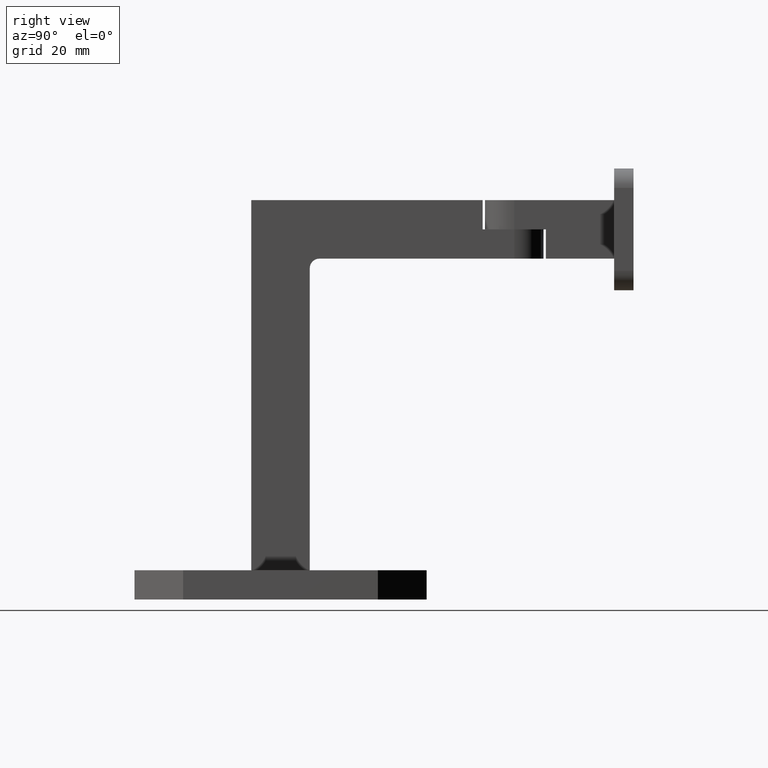
[diagram: clean part render]
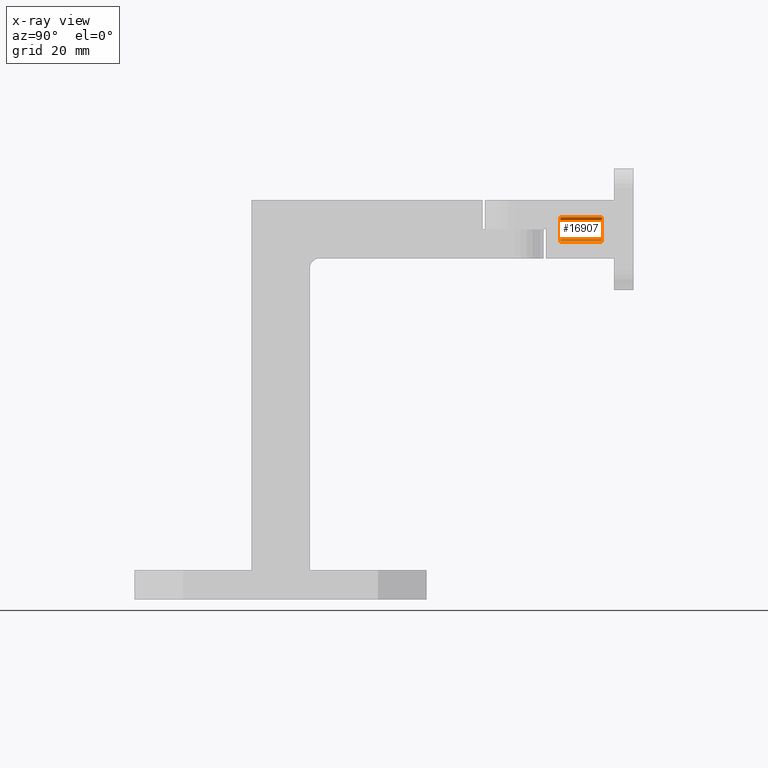
[diagram: x-ray — body ghosted, one internal face saturated and labeled with its STEP entity id]
A machine part, right view, then the same camera in x-ray: the body is ghosted and one INTERNAL B-rep face — a face not visible from any outside direction — is saturated and labeled: STEP entity #16907.
In plain terms, the highlighted cylindrical surface (edge-blend (fillet) strip) has radius 2.5 mm, axis along (0, 1, 0).
Its self-contained STEP definition (entity closure, byte-faithful):
#1172 = ORIENTED_EDGE ( 'NONE', *, *, #4771, .F. ) ;
#1364 = CARTESIAN_POINT ( 'NONE',  ( 3.061616997868380676E-16, 13.24999999999999822, -2.499999999999997780 ) ) ;
#1989 = CARTESIAN_POINT ( 'NONE',  ( 0.000000000000000000, 13.24999999999999822, 2.499999999999997780 ) ) ;
#3126 = CARTESIAN_POINT ( 'NONE',  ( 0.000000000000000000, 13.24999999999999822, 0.000000000000000000 ) ) ;
#4502 = EDGE_CURVE ( 'NONE', #5544, #11355, #4712, .T. ) ;
#4712 = LINE ( 'NONE', #1364, #14420 ) ;
#4771 = EDGE_CURVE ( 'NONE', #5544, #13637, #22102, .T. ) ;
#4956 = DIRECTION ( 'NONE',  ( -0.000000000000000000, 1.000000000000000000, -0.000000000000000000 ) ) ;
#5300 = DIRECTION ( 'NONE',  ( -0.000000000000000000, 1.000000000000000000, -0.000000000000000000 ) ) ;
#5333 = CARTESIAN_POINT ( 'NONE',  ( 0.000000000000000000, 10.74999999999999645, 2.499999999999997780 ) ) ;
#5544 = VERTEX_POINT ( 'NONE', #14154 ) ;
#5837 = CIRCLE ( 'NONE', #14853, 2.499999999999997780 ) ;
#6361 = CARTESIAN_POINT ( 'NONE',  ( 4.592425496802572986E-16, 10.74999999999999645, -2.499999999999997780 ) ) ;
#7680 = EDGE_CURVE ( 'NONE', #13637, #19405, #9637, .T. ) ;
#9145 = DIRECTION ( 'NONE',  ( 0.000000000000000000, 0.000000000000000000, 1.000000000000000000 ) ) ;
#9637 = LINE ( 'NONE', #1989, #18750 ) ;
#10079 = EDGE_LOOP ( 'NONE', ( #1172, #23063, #13649, #18619 ) ) ;
#10498 = EDGE_CURVE ( 'NONE', #19405, #11355, #5837, .T. ) ;
#11179 = AXIS2_PLACEMENT_3D ( 'NONE', #23495, #5300, #12562 ) ;
#11355 = VERTEX_POINT ( 'NONE', #6361 ) ;
#11720 = AXIS2_PLACEMENT_3D ( 'NONE', #3126, #4956, #22967 ) ;
#12562 = DIRECTION ( 'NONE',  ( 0.000000000000000000, 0.000000000000000000, 1.000000000000000000 ) ) ;
#13637 = VERTEX_POINT ( 'NONE', #19035 ) ;
#13649 = ORIENTED_EDGE ( 'NONE', *, *, #10498, .F. ) ;
#14154 = CARTESIAN_POINT ( 'NONE',  ( 3.061616997868380183E-16, 2.249999999999998668, -2.499999999999996891 ) ) ;
#14420 = VECTOR ( 'NONE', #15897, 1000.000000000000000 ) ;
#14838 = FACE_OUTER_BOUND ( 'NONE', #10079, .T. ) ;
#14853 = AXIS2_PLACEMENT_3D ( 'NONE', #21696, #15080, #9145 ) ;
#15080 = DIRECTION ( 'NONE',  ( 0.000000000000000000, -1.000000000000000000, 0.000000000000000000 ) ) ;
#15897 = DIRECTION ( 'NONE',  ( -0.000000000000000000, 1.000000000000000000, -0.000000000000000000 ) ) ;
#16907 = ADVANCED_FACE ( 'NONE', ( #14838 ), #18279, .F. ) ;
#18279 = CYLINDRICAL_SURFACE ( 'NONE', #11720, 2.499999999999997780 ) ;
#18370 = DIRECTION ( 'NONE',  ( -0.000000000000000000, 1.000000000000000000, -0.000000000000000000 ) ) ;
#18619 = ORIENTED_EDGE ( 'NONE', *, *, #7680, .F. ) ;
#18750 = VECTOR ( 'NONE', #18370, 1000.000000000000000 ) ;
#19035 = CARTESIAN_POINT ( 'NONE',  ( 0.000000000000000000, 2.249999999999998668, 2.499999999999996891 ) ) ;
#19405 = VERTEX_POINT ( 'NONE', #5333 ) ;
#21696 = CARTESIAN_POINT ( 'NONE',  ( 0.000000000000000000, 10.74999999999999645, 0.000000000000000000 ) ) ;
#22102 = CIRCLE ( 'NONE', #11179, 2.499999999999996891 ) ;
#22967 = DIRECTION ( 'NONE',  ( 0.000000000000000000, 0.000000000000000000, 1.000000000000000000 ) ) ;
#23063 = ORIENTED_EDGE ( 'NONE', *, *, #4502, .T. ) ;
#23495 = CARTESIAN_POINT ( 'NONE',  ( 0.000000000000000000, 2.249999999999998668, 0.000000000000000000 ) ) ;